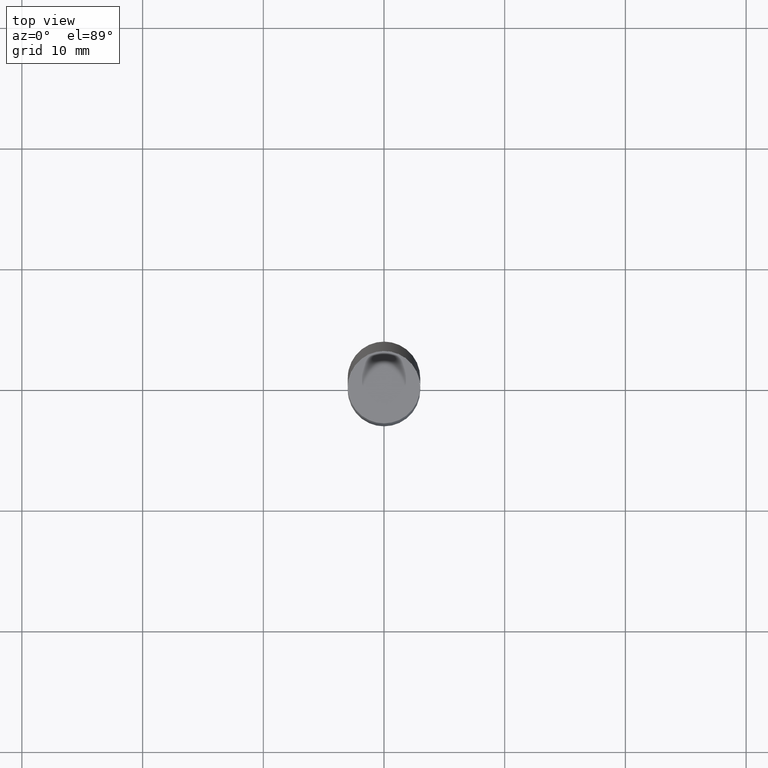
[diagram: clean part render]
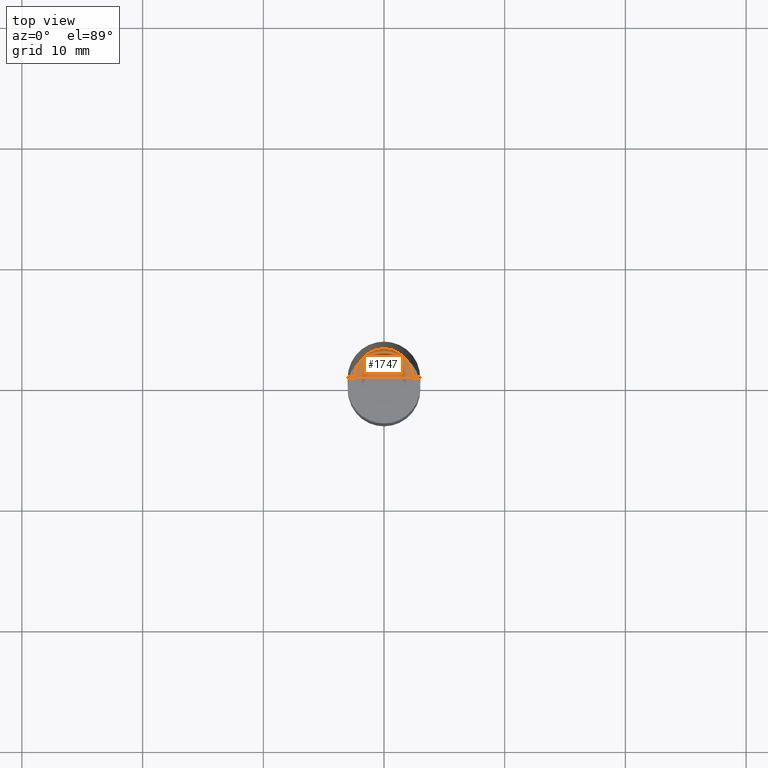
[diagram: same view with one face highlighted and labeled with its STEP entity id]
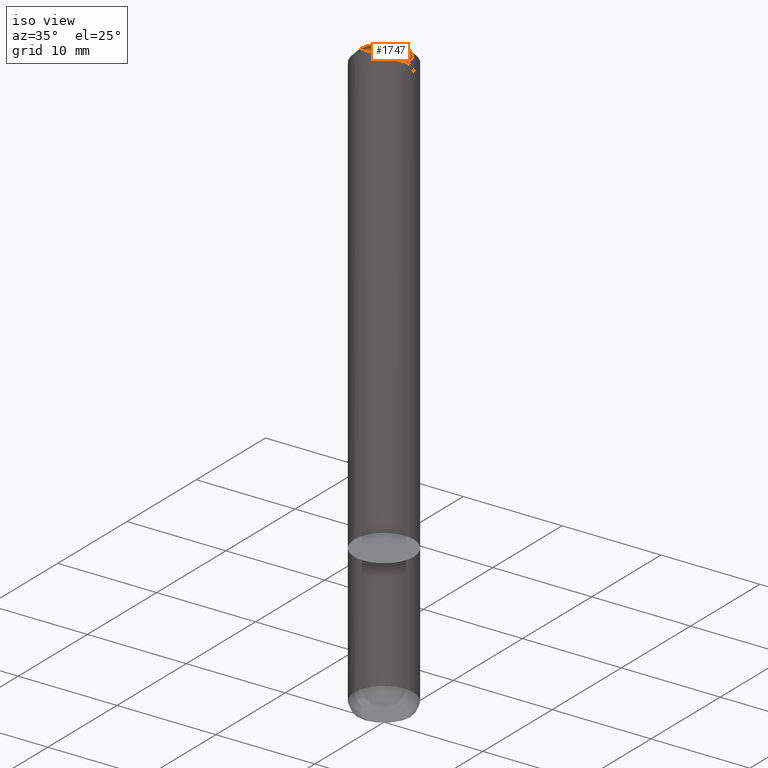
[diagram: same view with one face highlighted and labeled with its STEP entity id]
A machine part, top view. The second image highlights one B-rep face of the part: STEP entity #1747.
A second angle (iso view) of the same face is appended — the face is thin or edge-on in the first view.
In plain terms, the highlighted face is a freeform B-spline surface patch.
Its self-contained STEP definition (entity closure, byte-faithful):
#1507=CARTESIAN_POINT('',(2.4,0.0,45.0));
#1508=CARTESIAN_POINT('',(2.4,2.4,45.0));
#1509=CARTESIAN_POINT('',(0.0,2.4,45.0));
#1510=CARTESIAN_POINT('',(-2.4,2.4,45.0));
#1511=CARTESIAN_POINT('',(-2.4,0.0,45.0));
#1512=CARTESIAN_POINT('',(0.0,0.0,45.0));
#1732=(
BOUNDED_SURFACE()
B_SPLINE_SURFACE(1,2,(
(#1507,#1508,#1509,#1510,#1511),
(#1512,#1512,#1512,#1512,#1512)
), .UNSPECIFIED.,.F.,.F.,.F.)
B_SPLINE_SURFACE_WITH_KNOTS((2,2),(3,2,3),(
0.0,1.0),(
0.0,0.5,1.0), .UNSPECIFIED.)
GEOMETRIC_REPRESENTATION_ITEM()
RATIONAL_B_SPLINE_SURFACE(((1.0,0.707106781187,1.0,0.707106781187,1.0),
(1.0,0.707106781187,1.0,0.707106781187,1.0)
))
REPRESENTATION_ITEM('')
SURFACE()
);
#1733=(
BOUNDED_CURVE()
B_SPLINE_CURVE(1,(#1512,#1507),.UNSPECIFIED.,.F.,.F.)
B_SPLINE_CURVE_WITH_KNOTS((2,2),
(0.0,1.0),.UNSPECIFIED.)
CURVE()
GEOMETRIC_REPRESENTATION_ITEM()
RATIONAL_B_SPLINE_CURVE((1.0,1.0))
REPRESENTATION_ITEM('')
);
#1734=(
BOUNDED_CURVE()
B_SPLINE_CURVE(2,(#1507,#1508,#1509,#1510,#1511),.UNSPECIFIED.,.F.,.F.)
B_SPLINE_CURVE_WITH_KNOTS((3,2,3),
(0.0,0.5,1.0),.UNSPECIFIED.)
CURVE()
GEOMETRIC_REPRESENTATION_ITEM()
RATIONAL_B_SPLINE_CURVE((1.0,0.707106781187,1.0,0.707106781187,1.0))
REPRESENTATION_ITEM('')
);
#1735=(
BOUNDED_CURVE()
B_SPLINE_CURVE(1,(#1511,#1512),.UNSPECIFIED.,.F.,.F.)
B_SPLINE_CURVE_WITH_KNOTS((2,2),
(0.0,1.0),.UNSPECIFIED.)
CURVE()
GEOMETRIC_REPRESENTATION_ITEM()
RATIONAL_B_SPLINE_CURVE((1.0,1.0))
REPRESENTATION_ITEM('')
);
#1736=VERTEX_POINT('',#1507);
#1737=VERTEX_POINT('',#1511);
#1738=VERTEX_POINT('',#1512);
#1739=EDGE_CURVE('',#1738,#1736,#1733,.T.);
#1740=EDGE_CURVE('',#1736,#1737,#1734,.T.);
#1741=EDGE_CURVE('',#1737,#1738,#1735,.T.);
#1742=ORIENTED_EDGE('',*,*,#1739,.T.);
#1743=ORIENTED_EDGE('',*,*,#1740,.T.);
#1744=ORIENTED_EDGE('',*,*,#1741,.T.);
#1745=EDGE_LOOP('',(#1742,#1743,#1744));
#1746=FACE_OUTER_BOUND('',#1745,.T.);
#1747=ADVANCED_FACE('',(#1746),#1732,.T.);